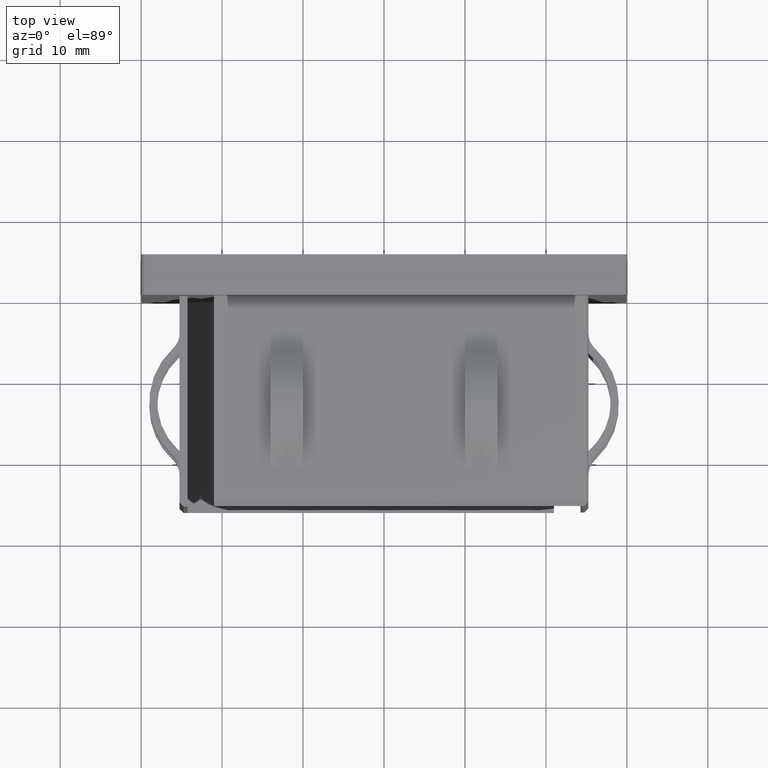
[diagram: clean part render]
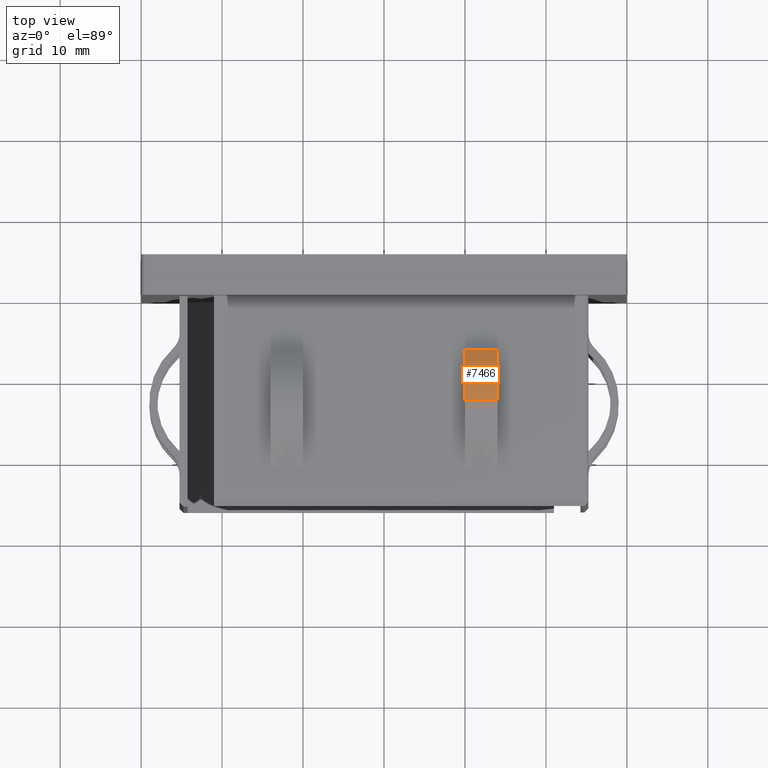
[diagram: same view with one face highlighted and labeled with its STEP entity id]
A machine part, top view. The second image highlights one B-rep face of the part: STEP entity #7466.
In plain terms, the highlighted cylindrical surface (partial cylindrical patch) has radius 10 mm, axis along (-1, -0, -0).
Its self-contained STEP definition (entity closure, byte-faithful):
#1285 = CYLINDRICAL_SURFACE ( 'NONE', #10336, 9.999999999999998200 ) ;
#1396 = EDGE_CURVE ( 'NONE', #6748, #17110, #7474, .T. ) ;
#1422 = CARTESIAN_POINT ( 'NONE',  ( 9.999999999999998200, -13.00000000000000000, 18.25000000000012400 ) ) ;
#1761 = CARTESIAN_POINT ( 'NONE',  ( 9.999999999999998200, -6.723076923076724200, 26.03461538461535000 ) ) ;
#1768 = FACE_OUTER_BOUND ( 'NONE', #6318, .T. ) ;
#1881 = EDGE_CURVE ( 'NONE', #12201, #17110, #10102, .T. ) ;
#2175 = AXIS2_PLACEMENT_3D ( 'NONE', #1422, #2635, #8306 ) ;
#2453 = DIRECTION ( 'NONE',  ( 1.000000000000000000, 1.232595164407830900E-032, 8.812412587398741500E-017 ) ) ;
#2635 = DIRECTION ( 'NONE',  ( 1.000000000000000000, 1.232595164407830900E-032, 8.812412587398741500E-017 ) ) ;
#3331 = CARTESIAN_POINT ( 'NONE',  ( 13.99999999999999600, -13.00000000000000000, 28.25000000000012100 ) ) ;
#3493 = CARTESIAN_POINT ( 'NONE',  ( 13.99999999999999800, -6.723076923076724200, 26.03461538461535000 ) ) ;
#5275 = CIRCLE ( 'NONE', #16200, 9.999999999999998200 ) ;
#5567 = CARTESIAN_POINT ( 'NONE',  ( 9.999999999999996400, -13.00000000000000000, 28.25000000000012100 ) ) ;
#5986 = CARTESIAN_POINT ( 'NONE',  ( 13.99999999999999600, -13.00000000000000000, 28.25000000000012100 ) ) ;
#6318 = EDGE_LOOP ( 'NONE', ( #14814, #8280, #12159, #11920 ) ) ;
#6748 = VERTEX_POINT ( 'NONE', #1761 ) ;
#6760 = CARTESIAN_POINT ( 'NONE',  ( 13.99999999999999800, -13.00000000000000000, 18.25000000000012400 ) ) ;
#7166 = LINE ( 'NONE', #3493, #13116 ) ;
#7466 = ADVANCED_FACE ( 'NONE', ( #1768 ), #1285, .T. ) ;
#7474 = CIRCLE ( 'NONE', #2175, 9.999999999999998200 ) ;
#8155 = EDGE_CURVE ( 'NONE', #8502, #6748, #7166, .T. ) ;
#8249 = DIRECTION ( 'NONE',  ( -1.734723475976807300E-016, 0.0000000000000000000, 1.000000000000000000 ) ) ;
#8280 = ORIENTED_EDGE ( 'NONE', *, *, #13531, .F. ) ;
#8306 = DIRECTION ( 'NONE',  ( -1.734723475976807300E-016, 0.0000000000000000000, 1.000000000000000000 ) ) ;
#8502 = VERTEX_POINT ( 'NONE', #10081 ) ;
#9221 = DIRECTION ( 'NONE',  ( -1.734723475976807300E-016, 0.0000000000000000000, 1.000000000000000000 ) ) ;
#10081 = CARTESIAN_POINT ( 'NONE',  ( 13.99999999999999800, -6.723076923076724200, 26.03461538461535000 ) ) ;
#10102 = LINE ( 'NONE', #5986, #17627 ) ;
#10336 = AXIS2_PLACEMENT_3D ( 'NONE', #14846, #11857, #9221 ) ;
#11857 = DIRECTION ( 'NONE',  ( -1.000000000000000000, -0.0000000000000000000, -1.077467997501122600E-016 ) ) ;
#11920 = ORIENTED_EDGE ( 'NONE', *, *, #1396, .T. ) ;
#12159 = ORIENTED_EDGE ( 'NONE', *, *, #8155, .T. ) ;
#12201 = VERTEX_POINT ( 'NONE', #3331 ) ;
#13116 = VECTOR ( 'NONE', #16289, 1000.000000000000000 ) ;
#13531 = EDGE_CURVE ( 'NONE', #8502, #12201, #5275, .T. ) ;
#14814 = ORIENTED_EDGE ( 'NONE', *, *, #1881, .F. ) ;
#14846 = CARTESIAN_POINT ( 'NONE',  ( 13.99999999999999800, -13.00000000000000000, 18.25000000000012400 ) ) ;
#16200 = AXIS2_PLACEMENT_3D ( 'NONE', #6760, #2453, #8249 ) ;
#16289 = DIRECTION ( 'NONE',  ( -1.000000000000000000, -0.0000000000000000000, -1.077467997501122600E-016 ) ) ;
#17055 = DIRECTION ( 'NONE',  ( -1.000000000000000000, -0.0000000000000000000, -1.077467997501122600E-016 ) ) ;
#17110 = VERTEX_POINT ( 'NONE', #5567 ) ;
#17627 = VECTOR ( 'NONE', #17055, 1000.000000000000000 ) ;